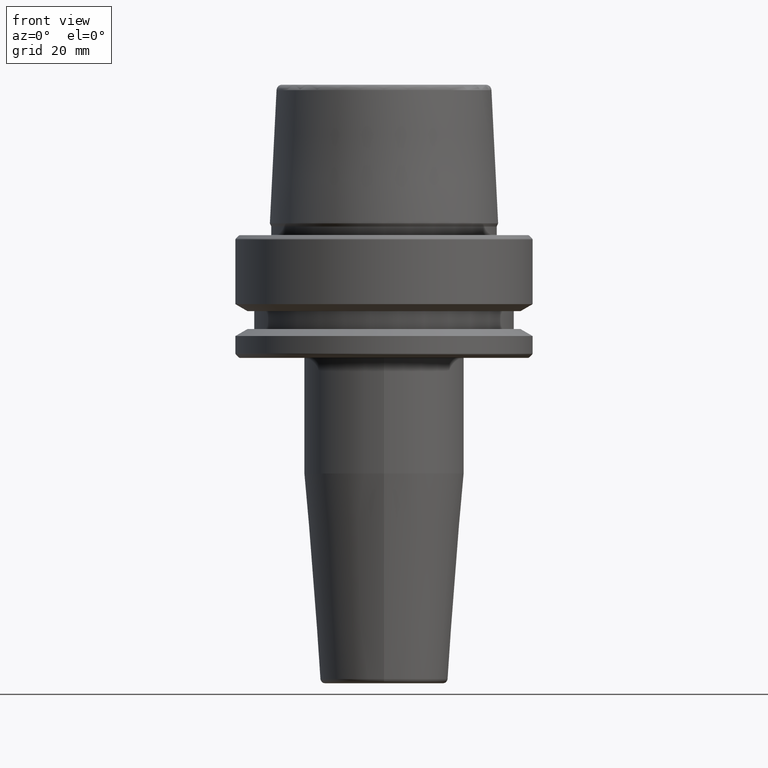
[diagram: clean part render]
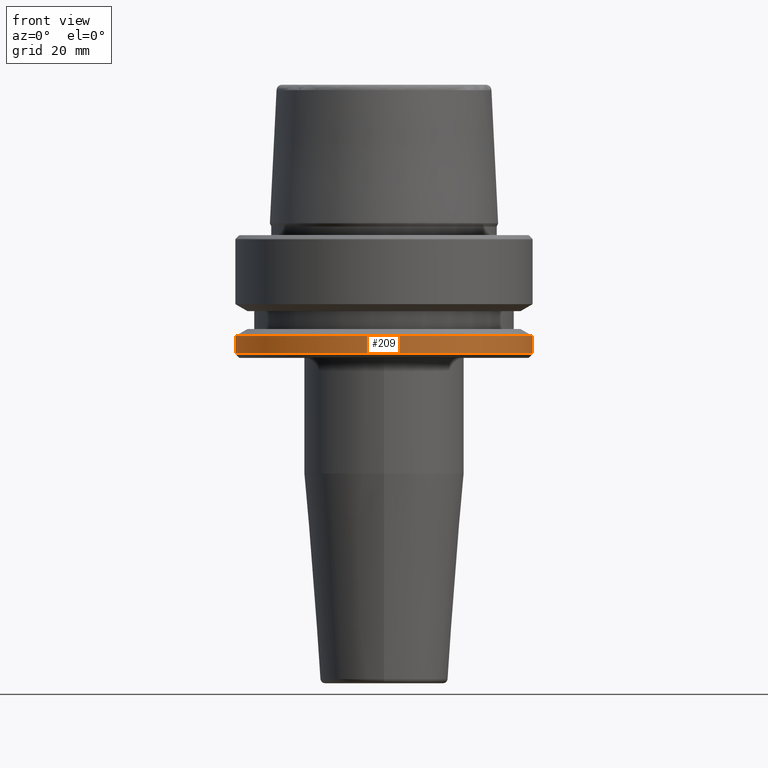
[diagram: same view with one face highlighted and labeled with its STEP entity id]
A machine part, front view. The second image highlights one B-rep face of the part: STEP entity #209.
In plain terms, the highlighted cylindrical surface (partial cylindrical patch) has radius 31.5 mm, axis along (-0, -0, 1).
Its self-contained STEP definition (entity closure, byte-faithful):
#30 = VECTOR ( 'NONE', #752, 1000.000000000000000 ) ;
#132 = EDGE_LOOP ( 'NONE', ( #463, #991, #230, #407 ) ) ;
#147 = LINE ( 'NONE', #1045, #689 ) ;
#209 = ADVANCED_FACE ( 'NONE', ( #257 ), #483, .T. ) ;
#220 = CARTESIAN_POINT ( 'NONE',  ( 0.0000000000000000000, 0.0000000000000000000, -21.37749907475931700 ) ) ;
#230 = ORIENTED_EDGE ( 'NONE', *, *, #999, .T. ) ;
#257 = FACE_OUTER_BOUND ( 'NONE', #132, .T. ) ;
#309 = DIRECTION ( 'NONE',  ( 1.000000000000000000, 0.0000000000000000000, 0.0000000000000000000 ) ) ;
#313 = CARTESIAN_POINT ( 'NONE',  ( 0.0000000000000000000, 0.0000000000000000000, -25.03431457505077200 ) ) ;
#323 = CARTESIAN_POINT ( 'NONE',  ( -31.50000000000000000, 3.857637417314162700E-015, -21.37749907475931700 ) ) ;
#407 = ORIENTED_EDGE ( 'NONE', *, *, #1044, .F. ) ;
#416 = DIRECTION ( 'NONE',  ( 1.000000000000000000, 0.0000000000000000000, 0.0000000000000000000 ) ) ;
#450 = CARTESIAN_POINT ( 'NONE',  ( 0.0000000000000000000, 0.0000000000000000000, 78.96908074195309300 ) ) ;
#463 = ORIENTED_EDGE ( 'NONE', *, *, #860, .F. ) ;
#483 = CYLINDRICAL_SURFACE ( 'NONE', #962, 31.50000000000000000 ) ;
#495 = CARTESIAN_POINT ( 'NONE',  ( 31.50000000000000000, 0.0000000000000000000, -25.03431457505077200 ) ) ;
#506 = VERTEX_POINT ( 'NONE', #665 ) ;
#605 = DIRECTION ( 'NONE',  ( -0.0000000000000000000, -0.0000000000000000000, 1.000000000000000000 ) ) ;
#654 = CARTESIAN_POINT ( 'NONE',  ( -31.50000000000000000, 3.857637417314161900E-015, -25.03431457505077200 ) ) ;
#665 = CARTESIAN_POINT ( 'NONE',  ( 31.50000000000000000, 0.0000000000000000000, -21.37749907475931700 ) ) ;
#689 = VECTOR ( 'NONE', #605, 1000.000000000000000 ) ;
#752 = DIRECTION ( 'NONE',  ( -0.0000000000000000000, -0.0000000000000000000, 1.000000000000000000 ) ) ;
#774 = EDGE_CURVE ( 'NONE', #1036, #848, #906, .T. ) ;
#797 = AXIS2_PLACEMENT_3D ( 'NONE', #220, #914, #309 ) ;
#848 = VERTEX_POINT ( 'NONE', #495 ) ;
#860 = EDGE_CURVE ( 'NONE', #1036, #1162, #147, .T. ) ;
#893 = CIRCLE ( 'NONE', #797, 31.50000000000000000 ) ;
#906 = CIRCLE ( 'NONE', #1138, 31.50000000000000000 ) ;
#914 = DIRECTION ( 'NONE',  ( -0.0000000000000000000, -0.0000000000000000000, 1.000000000000000000 ) ) ;
#939 = DIRECTION ( 'NONE',  ( 1.000000000000000000, 0.0000000000000000000, 0.0000000000000000000 ) ) ;
#962 = AXIS2_PLACEMENT_3D ( 'NONE', #450, #1096, #939 ) ;
#986 = DIRECTION ( 'NONE',  ( -0.0000000000000000000, -0.0000000000000000000, 1.000000000000000000 ) ) ;
#991 = ORIENTED_EDGE ( 'NONE', *, *, #774, .T. ) ;
#999 = EDGE_CURVE ( 'NONE', #848, #506, #1242, .T. ) ;
#1036 = VERTEX_POINT ( 'NONE', #654 ) ;
#1044 = EDGE_CURVE ( 'NONE', #1162, #506, #893, .T. ) ;
#1045 = CARTESIAN_POINT ( 'NONE',  ( -31.50000000000000000, 3.857637417314162700E-015, 78.96908074195309300 ) ) ;
#1064 = CARTESIAN_POINT ( 'NONE',  ( 31.50000000000000000, 0.0000000000000000000, 78.96908074195309300 ) ) ;
#1096 = DIRECTION ( 'NONE',  ( -0.0000000000000000000, -0.0000000000000000000, 1.000000000000000000 ) ) ;
#1138 = AXIS2_PLACEMENT_3D ( 'NONE', #313, #986, #416 ) ;
#1162 = VERTEX_POINT ( 'NONE', #323 ) ;
#1242 = LINE ( 'NONE', #1064, #30 ) ;